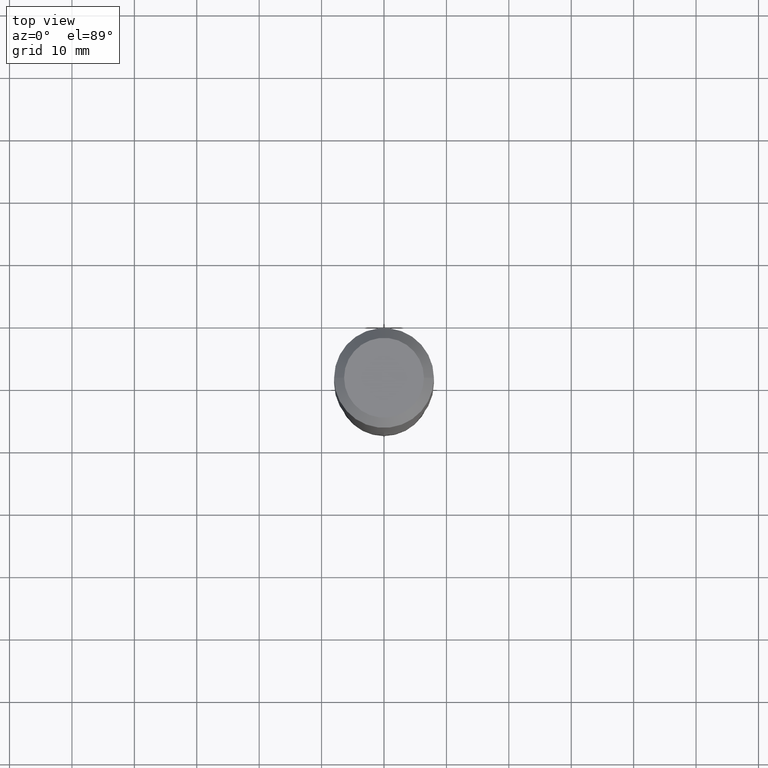
[diagram: clean part render]
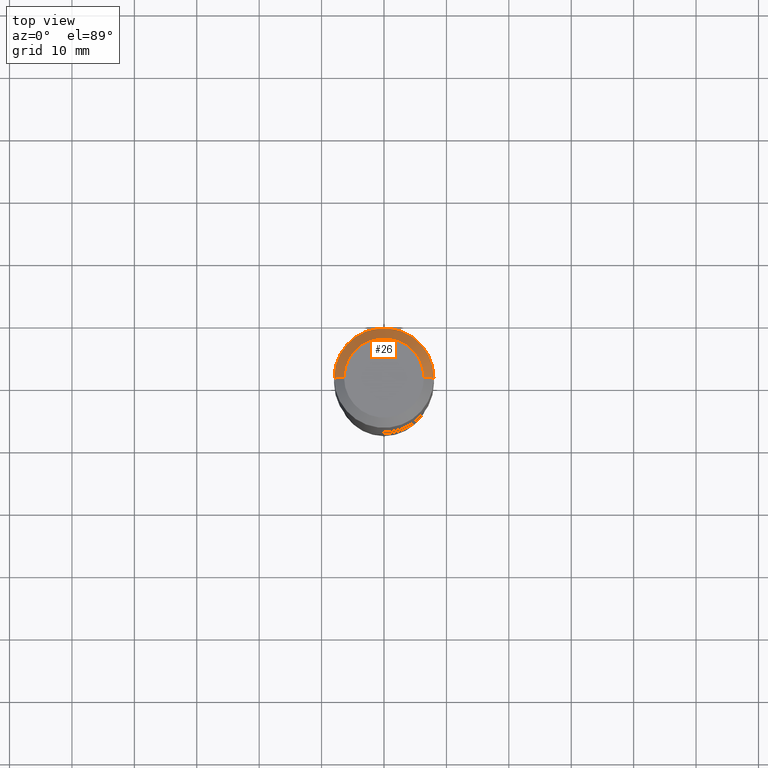
[diagram: same view with one face highlighted and labeled with its STEP entity id]
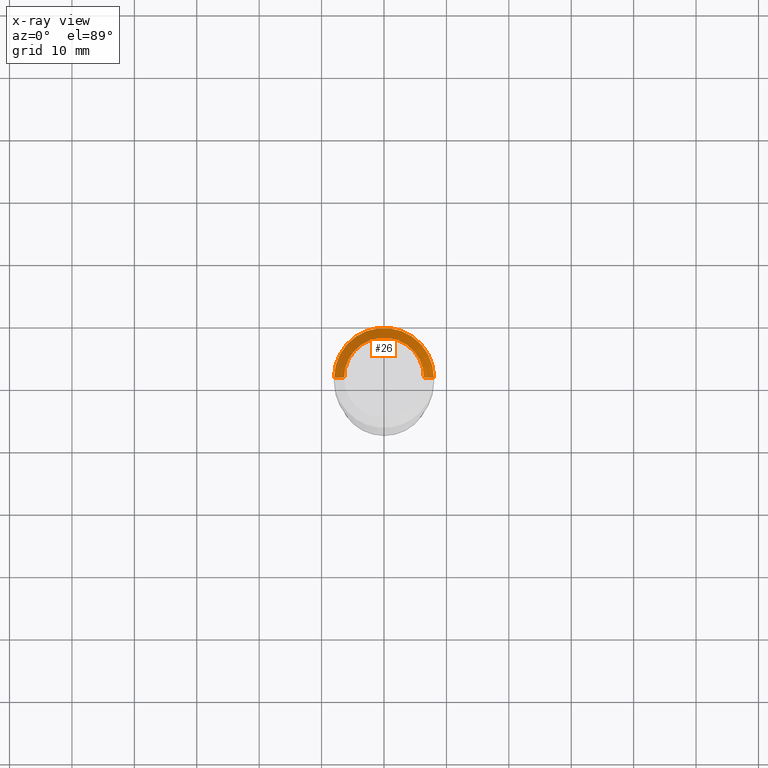
[diagram: x-ray of the same camera — body ghosted, the highlighted face saturated]
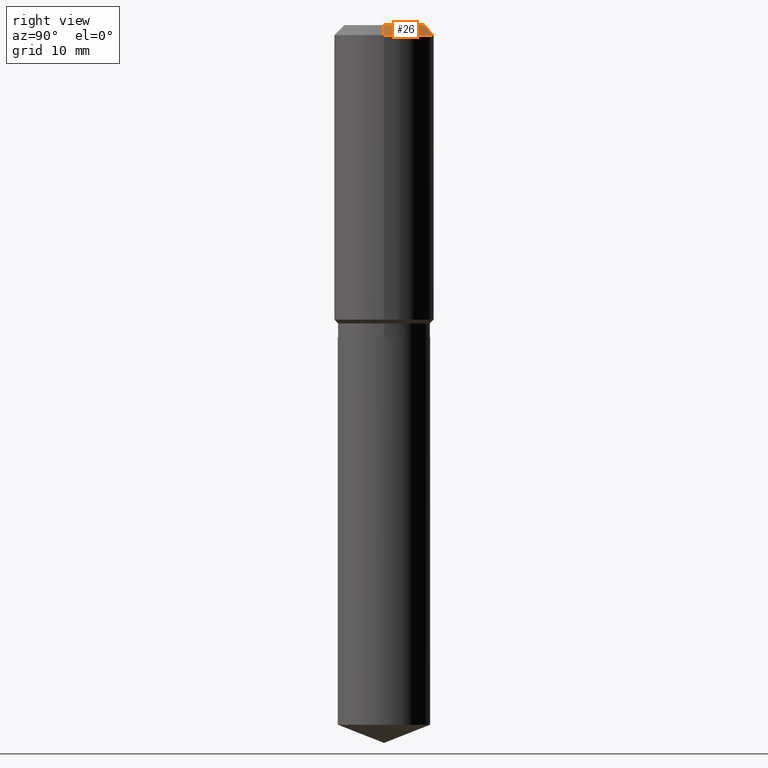
[diagram: same view with one face highlighted and labeled with its STEP entity id]
A machine part, top view. The second image highlights one B-rep face of the part: STEP entity #26.
The next image is the same camera in x-ray: the body ghosted, the highlighted face saturated — about 0% of this face is hidden behind the body in this view.
A second angle (right view) of the same face is appended — the face is thin or edge-on in the first view.
In plain terms, the highlighted conical surface has half-angle 45 deg.
Its self-contained STEP definition (entity closure, byte-faithful):
#2 = CARTESIAN_POINT ( 'NONE',  ( 0.3149500000000000077, -2.380642253931875190E-15, -0.06299000000000036514 ) ) ;
#3 = LINE ( 'NONE', #312, #62 ) ;
#17 = DIRECTION ( 'NONE',  ( -0.7071067811865453523, 2.468850131082234184E-15, -0.7071067811865496822 ) ) ;
#26 = ADVANCED_FACE ( 'NONE', ( #453 ), #102, .T. ) ;
#49 = ORIENTED_EDGE ( 'NONE', *, *, #67, .F. ) ;
#52 = ORIENTED_EDGE ( 'NONE', *, *, #381, .T. ) ;
#55 = CARTESIAN_POINT ( 'NONE',  ( 1.540400801016026329E-30, -2.199284095337310135E-16, -0.06299000000000036514 ) ) ;
#62 = VECTOR ( 'NONE', #17, 39.37007874015748143 ) ;
#65 = DIRECTION ( 'NONE',  ( 1.000000000000000000, -6.982962677686266711E-15, 0.000000000000000000 ) ) ;
#67 = EDGE_CURVE ( 'NONE', #95, #284, #3, .T. ) ;
#78 = CARTESIAN_POINT ( 'NONE',  ( -9.427742298522569579E-47, 1.346031739168368629E-32, 3.855188123715871501E-18 ) ) ;
#81 = ORIENTED_EDGE ( 'NONE', *, *, #197, .T. ) ;
#94 = VERTEX_POINT ( 'NONE', #408 ) ;
#95 = VERTEX_POINT ( 'NONE', #261 ) ;
#102 = CONICAL_SURFACE ( 'NONE', #476, 0.3149500000000000077, 0.7853981633974452814 ) ;
#105 = CIRCLE ( 'NONE', #297, 0.2519600000000000173 ) ;
#112 = DIRECTION ( 'NONE',  ( 2.445468806185136597E-29, -3.491481338843145583E-15, -1.000000000000000000 ) ) ;
#114 = EDGE_LOOP ( 'NONE', ( #151, #81, #52, #49 ) ) ;
#140 = DIRECTION ( 'NONE',  ( -2.445468806185136597E-29, 3.491481338843145583E-15, 1.000000000000000000 ) ) ;
#146 = DIRECTION ( 'NONE',  ( -1.000000000000000000, 6.982962677686266711E-15, 0.000000000000000000 ) ) ;
#148 = EDGE_CURVE ( 'NONE', #94, #95, #105, .T. ) ;
#151 = ORIENTED_EDGE ( 'NONE', *, *, #148, .F. ) ;
#158 = DIRECTION ( 'NONE',  ( 0.7071067811865453523, -7.319954787623248157E-15, -0.7071067811865496822 ) ) ;
#160 = CARTESIAN_POINT ( 'NONE',  ( -0.3149500000000000077, -1.114823151940998237E-15, -0.06299000000000036514 ) ) ;
#197 = EDGE_CURVE ( 'NONE', #94, #339, #450, .T. ) ;
#257 = DIRECTION ( 'NONE',  ( 1.000000000000000000, -6.982962677686266711E-15, 4.876115136096691995E-29 ) ) ;
#261 = CARTESIAN_POINT ( 'NONE',  ( -0.2519600000000000173, 1.869391481036695286E-15, 3.855188123703182704E-18 ) ) ;
#284 = VERTEX_POINT ( 'NONE', #160 ) ;
#297 = AXIS2_PLACEMENT_3D ( 'NONE', #78, #377, #257 ) ;
#312 = CARTESIAN_POINT ( 'NONE',  ( -0.3149500000000000077, 1.979355685803558833E-15, -0.06299000000000036514 ) ) ;
#323 = CARTESIAN_POINT ( 'NONE',  ( 0.3149500000000000077, -2.419212504871020909E-15, -0.06299000000000036514 ) ) ;
#336 = CARTESIAN_POINT ( 'NONE',  ( 1.540400801016026329E-30, -2.199284095337310135E-16, -0.06299000000000036514 ) ) ;
#339 = VERTEX_POINT ( 'NONE', #323 ) ;
#358 = VECTOR ( 'NONE', #158, 39.37007874015748143 ) ;
#377 = DIRECTION ( 'NONE',  ( -2.445468806185136597E-29, 3.491481338843145583E-15, 1.000000000000000000 ) ) ;
#381 = EDGE_CURVE ( 'NONE', #339, #284, #444, .T. ) ;
#405 = AXIS2_PLACEMENT_3D ( 'NONE', #55, #140, #65 ) ;
#408 = CARTESIAN_POINT ( 'NONE',  ( 0.2519600000000000173, -2.054606664725195058E-15, 3.855188123729206640E-18 ) ) ;
#444 = CIRCLE ( 'NONE', #405, 0.3149500000000000077 ) ;
#450 = LINE ( 'NONE', #2, #358 ) ;
#453 = FACE_OUTER_BOUND ( 'NONE', #114, .T. ) ;
#476 = AXIS2_PLACEMENT_3D ( 'NONE', #336, #112, #146 ) ;